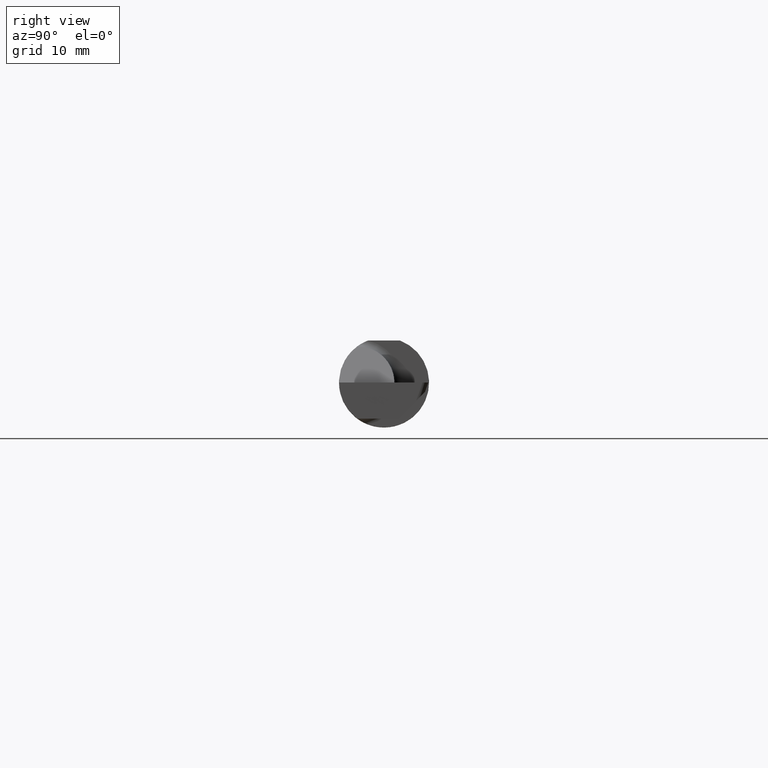
[diagram: clean part render]
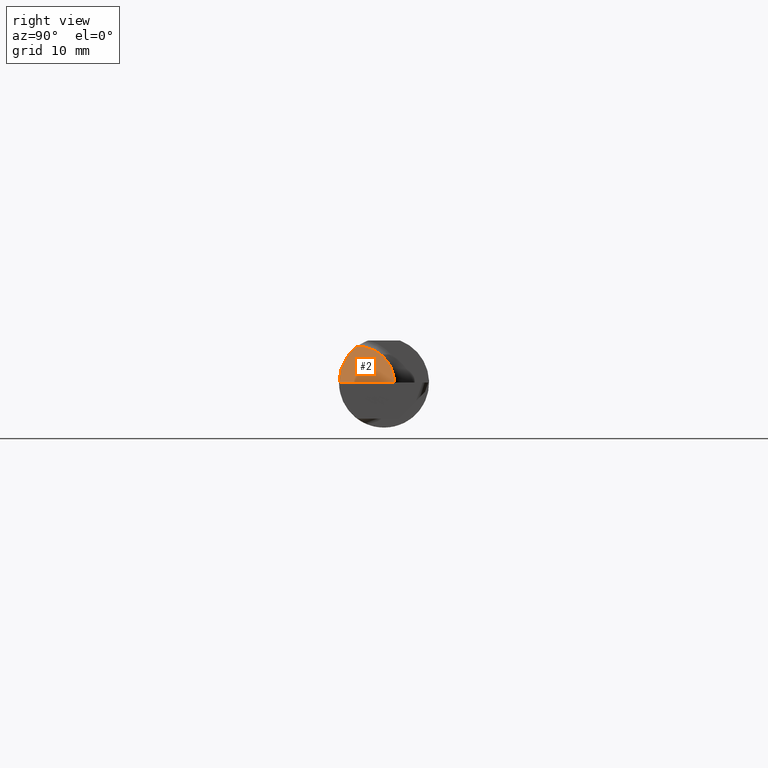
[diagram: same view with one face highlighted and labeled with its STEP entity id]
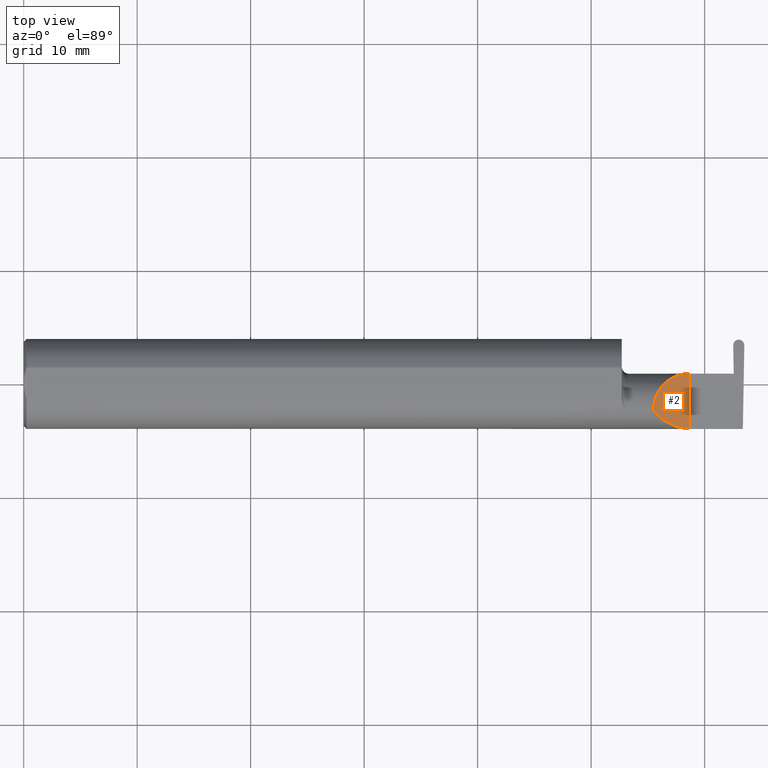
[diagram: same view with one face highlighted and labeled with its STEP entity id]
A machine part, right view. The second image highlights one B-rep face of the part: STEP entity #2.
A second angle (top view) of the same face is appended — the face is thin or edge-on in the first view.
In plain terms, the highlighted planar face has unit normal (-0.7071, 0, -0.7071).
Its self-contained STEP definition (entity closure, byte-faithful):
#2 = ADVANCED_FACE ( 'NONE', ( #302 ), #237, .F. ) ;
#28 = EDGE_CURVE ( 'NONE', #614, #244, #140, .T. ) ;
#54 = CARTESIAN_POINT ( 'NONE',  ( 2.310000000000000053, -0.2500000000000000555, 2.326828918379970872E-17 ) ) ;
#55 = EDGE_CURVE ( 'NONE', #427, #171, #424, .T. ) ;
#76 = CARTESIAN_POINT ( 'NONE',  ( 2.310000000000000053, -0.1560999999999999888, 2.326828918379970872E-17 ) ) ;
#104 = CARTESIAN_POINT ( 'NONE',  ( 2.184999999999999165, -0.08910000000000001252, 0.1250000000000000278 ) ) ;
#115 = DIRECTION ( 'NONE',  ( -0.7071067811865513475, 0.000000000000000000, 0.7071067811865436870 ) ) ;
#135 = CARTESIAN_POINT ( 'NONE',  ( 2.236776695296636142, 0.03589999999999995972, 0.07322330470336316233 ) ) ;
#140 =( BOUNDED_CURVE ( )  B_SPLINE_CURVE ( 3, ( #180, #542, #676, #603 ),
 .UNSPECIFIED., .F., .F. ) 
 B_SPLINE_CURVE_WITH_KNOTS ( ( 4, 4 ),
 ( 6.247110142813124156, 6.283185307179586232 ),
 .UNSPECIFIED. ) 
 CURVE ( )  GEOMETRIC_REPRESENTATION_ITEM ( )  RATIONAL_B_SPLINE_CURVE ( ( 1.000000000000000000, 0.9998915514833921492, 0.9998915514833921492, 1.000000000000000000 ) ) 
 REPRESENTATION_ITEM ( '' )  );
#146 = ORIENTED_EDGE ( 'NONE', *, *, #55, .T. ) ;
#159 = VECTOR ( 'NONE', #479, 39.37007874015748143 ) ;
#168 =( BOUNDED_CURVE ( )  B_SPLINE_CURVE ( 3, ( #76, #807, #689, #197 ),
 .UNSPECIFIED., .F., .T. ) 
 B_SPLINE_CURVE_WITH_KNOTS ( ( 4, 4 ),
 ( 4.712388980384689674, 5.640097190903854418 ),
 .UNSPECIFIED. ) 
 CURVE ( )  GEOMETRIC_REPRESENTATION_ITEM ( )  RATIONAL_B_SPLINE_CURVE ( ( 1.000000000000000000, 0.9295565493311498395, 0.9295565493311498395, 1.000000000000000000 ) ) 
 REPRESENTATION_ITEM ( '' )  );
#170 = CARTESIAN_POINT ( 'NONE',  ( 2.184999999999998277, -0.01587669529663690224, 0.1250000000000000555 ) ) ;
#171 = VERTEX_POINT ( 'NONE', #566 ) ;
#180 = CARTESIAN_POINT ( 'NONE',  ( 2.185081329771846992, -0.09360841750841733533, 0.1249186702281521039 ) ) ;
#197 = CARTESIAN_POINT ( 'NONE',  ( 2.185081329771846992, -0.09360841750841733533, 0.1249186702281521039 ) ) ;
#199 = CARTESIAN_POINT ( 'NONE',  ( 2.310000000000000053, 0.03590000000000000135, 5.204748896376251932E-17 ) ) ;
#237 = PLANE ( 'NONE',  #410 ) ;
#244 = VERTEX_POINT ( 'NONE', #710 ) ;
#302 = FACE_OUTER_BOUND ( 'NONE', #413, .T. ) ;
#308 = CARTESIAN_POINT ( 'NONE',  ( 2.310000000000000053, -0.2500000000000000555, 2.326828918379970872E-17 ) ) ;
#407 = ORIENTED_EDGE ( 'NONE', *, *, #665, .F. ) ;
#410 = AXIS2_PLACEMENT_3D ( 'NONE', #54, #488, #115 ) ;
#413 = EDGE_LOOP ( 'NONE', ( #649, #407, #146, #421 ) ) ;
#421 = ORIENTED_EDGE ( 'NONE', *, *, #531, .F. ) ;
#424 = LINE ( 'NONE', #308, #159 ) ;
#427 = VERTEX_POINT ( 'NONE', #733 ) ;
#479 = DIRECTION ( 'NONE',  ( -0.000000000000000000, 1.000000000000000000, -0.000000000000000000 ) ) ;
#488 = DIRECTION ( 'NONE',  ( -0.7071067811865436870, 0.000000000000000000, -0.7071067811865513475 ) ) ;
#531 = EDGE_CURVE ( 'NONE', #244, #171, #801, .T. ) ;
#542 = CARTESIAN_POINT ( 'NONE',  ( 2.185027112864298182, -0.09210618219364773152, 0.1249728871357008025 ) ) ;
#566 = CARTESIAN_POINT ( 'NONE',  ( 2.310000000000000053, 0.03590000000000000135, 5.204748896376251932E-17 ) ) ;
#603 = CARTESIAN_POINT ( 'NONE',  ( 2.184999999999999165, -0.08910000000000001252, 0.1250000000000000278 ) ) ;
#614 = VERTEX_POINT ( 'NONE', #744 ) ;
#649 = ORIENTED_EDGE ( 'NONE', *, *, #28, .F. ) ;
#665 = EDGE_CURVE ( 'NONE', #427, #614, #168, .T. ) ;
#676 = CARTESIAN_POINT ( 'NONE',  ( 2.184999999999999165, -0.09060321336276835891, 0.1250000000000000555 ) ) ;
#689 = CARTESIAN_POINT ( 'NONE',  ( 2.215117332916549220, -0.1336908980339253650, 0.09488266708345012568 ) ) ;
#710 = CARTESIAN_POINT ( 'NONE',  ( 2.184999999999999165, -0.08910000000000001252, 0.1250000000000000278 ) ) ;
#733 = CARTESIAN_POINT ( 'NONE',  ( 2.310000000000000053, -0.1560999999999999888, 2.326828918379970872E-17 ) ) ;
#744 = CARTESIAN_POINT ( 'NONE',  ( 2.185081329771846992, -0.09360841750841733533, 0.1249186702281521039 ) ) ;
#801 =( BOUNDED_CURVE ( )  B_SPLINE_CURVE ( 3, ( #104, #170, #135, #199 ),
 .UNSPECIFIED., .F., .F. ) 
 B_SPLINE_CURVE_WITH_KNOTS ( ( 4, 4 ),
 ( 0.000000000000000000, 1.570796326794896336 ),
 .UNSPECIFIED. ) 
 CURVE ( )  GEOMETRIC_REPRESENTATION_ITEM ( )  RATIONAL_B_SPLINE_CURVE ( ( 1.000000000000000000, 0.8047378541243650485, 0.8047378541243650485, 1.000000000000000000 ) ) 
 REPRESENTATION_ITEM ( '' )  );
#807 = CARTESIAN_POINT ( 'NONE',  ( 2.259912409421231949, -0.1560999999999999333, 0.05008759057876778498 ) ) ;